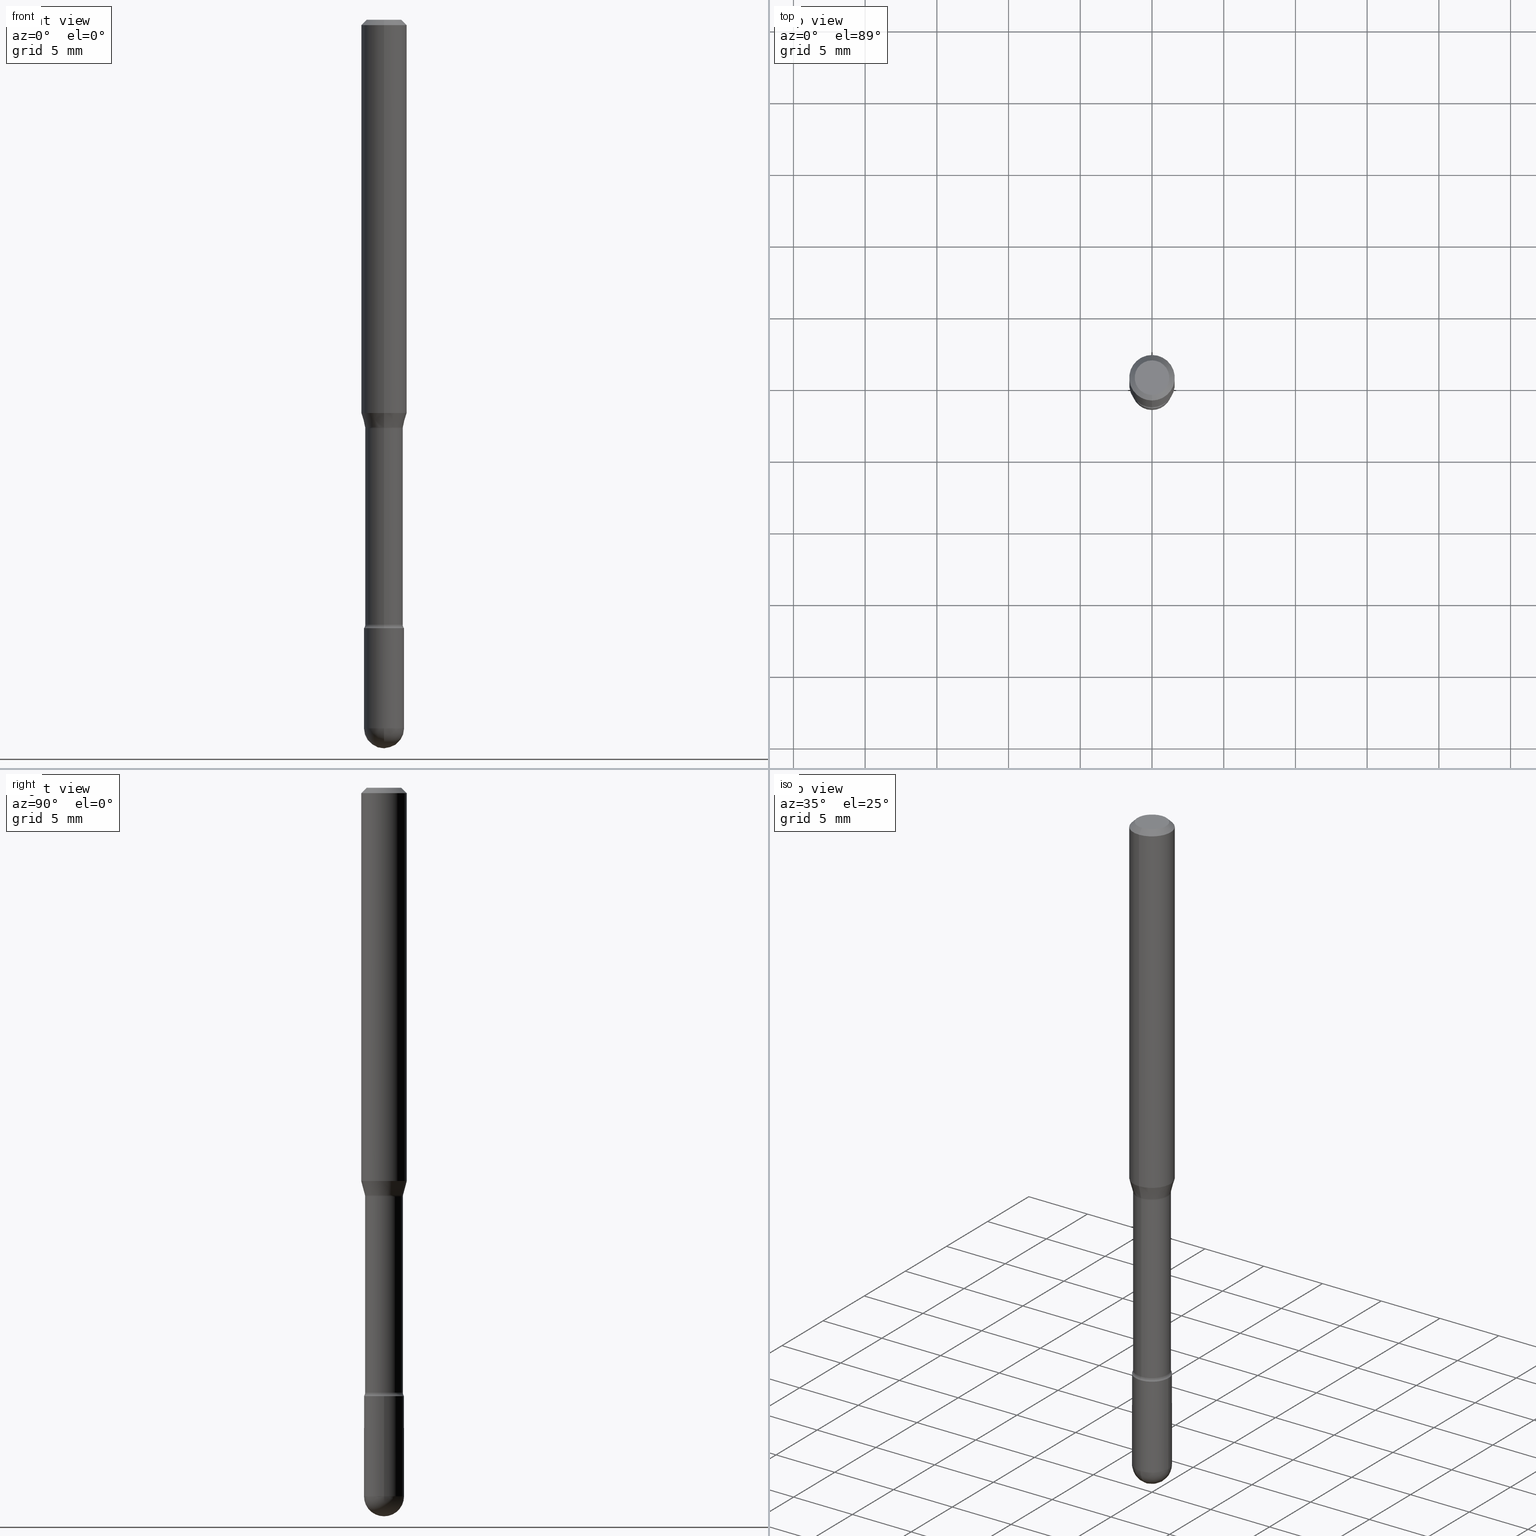
[diagram: canonical four-view strip — front | top / right | iso, engineering-drawing reading convention]
A machine part, canonical four-view strip (front | top / right | iso — engineering-drawing reading convention). The complete STEP part file that produces these views, byte-faithful:
ISO-10303-21;
HEADER;
FILE_DESCRIPTION (( 'STEP AP203' ),
    '1' );
FILE_NAME ('03721.STEP',
    '2024-04-09T20:15:29',
    ( '' ),
    ( '' ),
    'SwSTEP 2.0',
    'SolidWorks 2023',
    '' );
FILE_SCHEMA (( 'CONFIG_CONTROL_DESIGN' ));
ENDSEC;

DATA;
#1 = DIRECTION ( 'NONE',  ( 6.982962677686265922E-15, 1.000000000000000000, -3.483106191921935554E-15 ) ) ;
#2 = ADVANCED_BREP_SHAPE_REPRESENTATION ( '03721', ( #278, #285, #124 ), #52 ) ;
#3 = DIRECTION ( 'NONE',  ( 1.000000000000000000, -6.982962677686262766E-15, 0.000000000000000000 ) ) ;
#4 = DIRECTION ( 'NONE',  ( 2.445413130264774558E-29, -3.491561069929980790E-15, -1.000000000000000000 ) ) ;
#5 = DIRECTION ( 'NONE',  ( -2.445468806185136597E-29, 3.491481338843145583E-15, 1.000000000000000000 ) ) ;
#6 = CARTESIAN_POINT ( 'NONE',  ( -3.773273898774340269E-16, -0.04749999999999999362, 8.310590597675336717E-17 ) ) ;
#7 = EDGE_CURVE ( 'NONE', #247, #385, #474, .T. ) ;
#8 = DIRECTION ( 'NONE',  ( 1.000000000000000000, -6.982962677686266711E-15, 4.876176775795935793E-29 ) ) ;
#9 = DIRECTION ( 'NONE',  ( -6.982962677686263555E-15, -1.000000000000000000, 0.000000000000000000 ) ) ;
#10 = AXIS2_PLACEMENT_3D ( 'NONE', #177, #353, #524 ) ;
#11 = CIRCLE ( 'NONE', #461, 0.05221111260566397433 ) ;
#12 = EDGE_LOOP ( 'NONE', ( #70, #519, #503, #316 ) ) ;
#13 = EDGE_LOOP ( 'NONE', ( #161, #471, #542, #168 ) ) ;
#14 = EDGE_CURVE ( 'NONE', #341, #46, #295, .T. ) ;
#15 = DIRECTION ( 'NONE',  ( -6.982962677686265922E-15, -1.000000000000000000, 4.370956789862821150E-15 ) ) ;
#16 = CIRCLE ( 'NONE', #94, 0.05169999999999999596 ) ;
#17 = DIRECTION ( 'NONE',  ( 4.937700262164548042E-15, 0.7071067811865451302, -0.7071067811865499042 ) ) ;
#18 = CARTESIAN_POINT ( 'NONE',  ( 2.743754344068947711E-29, -3.917354033082399546E-15, -1.121974787463810630 ) ) ;
#19 = CARTESIAN_POINT ( 'NONE',  ( 4.440892098500888458E-16, 0.06249999999999621830, -1.079693851278256123 ) ) ;
#20 = ORIENTED_EDGE ( 'NONE', *, *, #14, .T. ) ;
#21 = VECTOR ( 'NONE', #528, 39.37007874015748143 ) ;
#22 = VECTOR ( 'NONE', #317, 39.37007874015748143 ) ;
#23 = LINE ( 'NONE', #548, #484 ) ;
#24 = ORIENTED_EDGE ( 'NONE', *, *, #401, .T. ) ;
#25 = ORIENTED_EDGE ( 'NONE', *, *, #64, .F. ) ;
#26 = EDGE_CURVE ( 'NONE', #393, #239, #455, .T. ) ;
#27 = ORIENTED_EDGE ( 'NONE', *, *, #500, .T. ) ;
#28 = CARTESIAN_POINT ( 'NONE',  ( 4.060885585943542654E-29, -5.798132775947381421E-15, -1.660613307291702645 ) ) ;
#29 = AXIS2_PLACEMENT_3D ( 'NONE', #28, #558, #527 ) ;
#30 = VERTEX_POINT ( 'NONE', #6 ) ;
#31 = AXIS2_PLACEMENT_3D ( 'NONE', #51, #54, #362 ) ;
#32 = APPROVAL_DATE_TIME ( #508, #35 ) ;
#33 = CARTESIAN_POINT ( 'NONE',  ( -4.364351673553912750E-16, -0.06250000000000005551, -0.01499999999999986587 ) ) ;
#34 = VERTEX_POINT ( 'NONE', #182 ) ;
#35 = APPROVAL ( #75, 'UNSPECIFIED' ) ;
#36 = CYLINDRICAL_SURFACE ( 'NONE', #10, 0.05170000000000000984 ) ;
#37 = EDGE_CURVE ( 'NONE', #272, #46, #357, .T. ) ;
#38 = EDGE_LOOP ( 'NONE', ( #327, #277, #369, #250, #169 ) ) ;
#39 = DIRECTION ( 'NONE',  ( -6.982962677686264344E-15, -1.000000000000000000, 3.491561069929980001E-15 ) ) ;
#40 = CYLINDRICAL_SURFACE ( 'NONE', #220, 0.06250000000000000000 ) ;
#41 = ORIENTED_EDGE ( 'NONE', *, *, #384, .F. ) ;
#42 = CARTESIAN_POINT ( 'NONE',  ( -3.610191704363393772E-16, -0.05170000000000580381, -1.660613307291702423 ) ) ;
#43 = VECTOR ( 'NONE', #352, 39.37007874015748143 ) ;
#44 = EDGE_CURVE ( 'NONE', #203, #90, #546, .T. ) ;
#45 = LINE ( 'NONE', #89, #22 ) ;
#46 = VERTEX_POINT ( 'NONE', #33 ) ;
#47 = CARTESIAN_POINT ( 'NONE',  ( 4.893289319665516092E-29, -6.979594898988634750E-15, -2.000000000000000000 ) ) ;
#48 = CARTESIAN_POINT ( 'NONE',  ( 0.000000000000000000, 0.000000000000000000, 0.000000000000000000 ) ) ;
#49 = FACE_OUTER_BOUND ( 'NONE', #12, .T. ) ;
#50 = CIRCLE ( 'NONE', #492, 0.05500000000000004191 ) ;
#51 = CARTESIAN_POINT ( 'NONE',  ( 4.756436828030090255E-29, -6.790931204049917095E-15, -1.944999999999999840 ) ) ;
#52 =( GEOMETRIC_REPRESENTATION_CONTEXT ( 3 ) GLOBAL_UNCERTAINTY_ASSIGNED_CONTEXT ( ( #427 ) ) GLOBAL_UNIT_ASSIGNED_CONTEXT ( ( #149, #496, #97 ) ) REPRESENTATION_CONTEXT ( 'NONE', 'WORKASPACE' ) );
#53 = PRODUCT_RELATED_PRODUCT_CATEGORY ( 'detail', '', ( #102 ) ) ;
#54 = DIRECTION ( 'NONE',  ( -1.000000000000000000, 7.105427357601001070E-15, -4.926315508542082329E-29 ) ) ;
#55 = CALENDAR_DATE ( 2024, 9, 4 ) ;
#56 = DIRECTION ( 'NONE',  ( -2.445413130264774558E-29, 3.491561069929980790E-15, 1.000000000000000000 ) ) ;
#57 = AXIS2_PLACEMENT_3D ( 'NONE', #389, #260, #476 ) ;
#58 = TOROIDAL_SURFACE ( 'NONE', #456, 0.06669999999999999540, 0.01499999999999998904 ) ;
#59 = CARTESIAN_POINT ( 'NONE',  ( 4.756436828030090255E-29, -6.790931204049917095E-15, -1.944999999999999840 ) ) ;
#60 = ADVANCED_FACE ( 'NONE', ( #211 ), #382, .T. ) ;
#61 = APPLICATION_PROTOCOL_DEFINITION ( 'international standard', 'config_control_design', 1994, #420 ) ;
#62 = COORDINATED_UNIVERSAL_TIME_OFFSET ( 5, 0, .BEHIND. ) ;
#63 = EDGE_LOOP ( 'NONE', ( #246, #212, #374, #25 ) ) ;
#64 = EDGE_CURVE ( 'NONE', #509, #247, #230, .T. ) ;
#65 = AXIS2_PLACEMENT_3D ( 'NONE', #226, #398, #526 ) ;
#66 = DIRECTION ( 'NONE',  ( 7.105427357601001859E-15, 1.000000000000000000, 0.000000000000000000 ) ) ;
#67 = ORIENTED_EDGE ( 'NONE', *, *, #130, .T. ) ;
#68 = PERSON_AND_ORGANIZATION_ROLE ( 'creator' ) ;
#69 = ORIENTED_EDGE ( 'NONE', *, *, #163, .F. ) ;
#70 = ORIENTED_EDGE ( 'NONE', *, *, #520, .F. ) ;
#71 = DIRECTION ( 'NONE',  ( 2.445413130264774558E-29, -3.491561069929980790E-15, -1.000000000000000000 ) ) ;
#72 = CARTESIAN_POINT ( 'NONE',  ( 2.743691877090031832E-29, -3.917443489351605416E-15, -1.121974787463810630 ) ) ;
#73 = EDGE_LOOP ( 'NONE', ( #185, #534, #195, #417 ) ) ;
#74 = ORIENTED_EDGE ( 'NONE', *, *, #494, .F. ) ;
#75 = APPROVAL_STATUS ( 'not_yet_approved' ) ;
#76 = ORIENTED_EDGE ( 'NONE', *, *, #545, .T. ) ;
#77 = CARTESIAN_POINT ( 'NONE',  ( 3.668119695397181911E-31, -5.237341604894999979E-17, -0.01500000000000008271 ) ) ;
#78 = CARTESIAN_POINT ( 'NONE',  ( 3.673505943880124923E-16, 0.05169999999999608242, -1.121974787463810630 ) ) ;
#79 = CARTESIAN_POINT ( 'NONE',  ( 0.05500000000000000028, -3.840629472727446888E-16, 2.681897226687764826E-30 ) ) ;
#80 = APPROVAL_PERSON_ORGANIZATION ( #340, #35, #423 ) ;
#81 = CC_DESIGN_DATE_AND_TIME_ASSIGNMENT ( #190, #540, ( #281 ) ) ;
#82 = DIRECTION ( 'NONE',  ( -2.445413130264774558E-29, 3.491561069929980790E-15, 1.000000000000000000 ) ) ;
#83 = DIRECTION ( 'NONE',  ( 1.000000000000000000, -6.982962677686262766E-15, 0.000000000000000000 ) ) ;
#84 = FACE_OUTER_BOUND ( 'NONE', #513, .T. ) ;
#85 = LINE ( 'NONE', #265, #229 ) ;
#86 = ORIENTED_EDGE ( 'NONE', *, *, #171, .F. ) ;
#87 = CARTESIAN_POINT ( 'NONE',  ( 4.060885585943542654E-29, -5.798132775947381421E-15, -1.660613307291702645 ) ) ;
#88 = AXIS2_PLACEMENT_3D ( 'NONE', #486, #274, #83 ) ;
#89 = CARTESIAN_POINT ( 'NONE',  ( -3.645882506857991305E-16, -0.05221111260566788093, -1.118092501787272708 ) ) ;
#90 = VERTEX_POINT ( 'NONE', #127 ) ;
#91 = CC_DESIGN_PERSON_AND_ORGANIZATION_ASSIGNMENT ( #338, #68, ( #523 ) ) ;
#92 = APPLICATION_PROTOCOL_DEFINITION ( 'international standard', 'config_control_design', 1994, #107 ) ;
#93 = ADVANCED_FACE ( 'NONE', ( #176 ), #40, .T. ) ;
#94 = AXIS2_PLACEMENT_3D ( 'NONE', #72, #151, #331 ) ;
#95 = CARTESIAN_POINT ( 'NONE',  ( 0.05500000000000000028, -6.694915467231730455E-15, -1.944999999999999840 ) ) ;
#96 = DIRECTION ( 'NONE',  ( 1.000000000000000000, -6.982962677686265922E-15, 4.883557194083112340E-29 ) ) ;
#97 =( NAMED_UNIT ( * ) SI_UNIT ( $, .STERADIAN. ) SOLID_ANGLE_UNIT ( ) );
#98 = SPHERICAL_SURFACE ( 'NONE', #428, 0.05500000000000004191 ) ;
#99 = EDGE_CURVE ( 'NONE', #200, #341, #219, .T. ) ;
#100 = CARTESIAN_POINT ( 'NONE',  ( 2.640297520581989546E-29, -3.769817018565928118E-15, -1.079693851278255678 ) ) ;
#101 = VECTOR ( 'NONE', #258, 39.37007874015748143 ) ;
#102 = PRODUCT ( '03721', '03721', '', ( #187 ) ) ;
#103 = ORIENTED_EDGE ( 'NONE', *, *, #7, .F. ) ;
#104 = CARTESIAN_POINT ( 'NONE',  ( 4.756436828030090255E-29, -6.790931204049917095E-15, -1.944999999999999840 ) ) ;
#105 = PERSON_AND_ORGANIZATION_ROLE ( 'classification_officer' ) ;
#106 = EDGE_CURVE ( 'NONE', #393, #90, #85, .T. ) ;
#107 = APPLICATION_CONTEXT ( 'configuration controlled 3d designs of mechanical parts and assemblies' ) ;
#108 = SECURITY_CLASSIFICATION_LEVEL ( 'unclassified' ) ;
#109 = ORIENTED_EDGE ( 'NONE', *, *, #14, .F. ) ;
#110 = VERTEX_POINT ( 'NONE', #392 ) ;
#111 = EDGE_CURVE ( 'NONE', #214, #34, #449, .T. ) ;
#112 = DIRECTION ( 'NONE',  ( -2.445413130264774278E-29, 3.491561069929980396E-15, 1.000000000000000000 ) ) ;
#113 = CLOSED_SHELL ( 'NONE', ( #360, #489, #60, #154, #440 ) ) ;
#114 = CC_DESIGN_APPROVAL ( #305, ( #281 ) ) ;
#115 = PERSON_AND_ORGANIZATION ( #162, #522 ) ;
#116 = VERTEX_POINT ( 'NONE', #47 ) ;
#117 = DATE_AND_TIME ( #368, #438 ) ;
#118 = EDGE_LOOP ( 'NONE', ( #563, #475, #103, #323 ) ) ;
#119 = CC_DESIGN_PERSON_AND_ORGANIZATION_ASSIGNMENT ( #491, #280, ( #281 ) ) ;
#120 = CYLINDRICAL_SURFACE ( 'NONE', #166, 0.05170000000000000984 ) ;
#121 = ORIENTED_EDGE ( 'NONE', *, *, #26, .T. ) ;
#122 = DIRECTION ( 'NONE',  ( -2.445413130264774839E-29, 3.491561069929980396E-15, 1.000000000000000000 ) ) ;
#123 = AXIS2_PLACEMENT_3D ( 'NONE', #172, #473, #346 ) ;
#124 = AXIS2_PLACEMENT_3D ( 'NONE', #237, #410, #325 ) ;
#125 = CARTESIAN_POINT ( 'NONE',  ( 4.739320047520142042E-16, 0.06669999999999608187, -1.121974787463811074 ) ) ;
#126 = FACE_OUTER_BOUND ( 'NONE', #205, .T. ) ;
#127 = CARTESIAN_POINT ( 'NONE',  ( -0.05500000000000000028, -5.920054015290930021E-15, -1.669999999999999929 ) ) ;
#128 = ORIENTED_EDGE ( 'NONE', *, *, #216, .F. ) ;
#129 = DIRECTION ( 'NONE',  ( -6.982962677686266711E-15, -1.000000000000000000, 2.642019336232363246E-15 ) ) ;
#130 = EDGE_CURVE ( 'NONE', #254, #301, #544, .T. ) ;
#131 = DIRECTION ( 'NONE',  ( -2.445413130264774558E-29, 3.491561069929980790E-15, 1.000000000000000000 ) ) ;
#132 = ORIENTED_EDGE ( 'NONE', *, *, #37, .T. ) ;
#133 = CYLINDRICAL_SURFACE ( 'NONE', #191, 0.05500000000000000028 ) ;
#134 = FACE_OUTER_BOUND ( 'NONE', #426, .T. ) ;
#135 = DIRECTION ( 'NONE',  ( -6.982962677686265922E-15, -1.000000000000000000, 3.483106191921935554E-15 ) ) ;
#136 = DIRECTION ( 'NONE',  ( 6.982962677686266711E-15, 1.000000000000000000, -4.966996352116838343E-15 ) ) ;
#137 = CARTESIAN_POINT ( 'NONE',  ( 4.756436828030090255E-29, -6.790931204049917095E-15, -1.944999999999999840 ) ) ;
#138 = DIRECTION ( 'NONE',  ( 6.982962677686267499E-15, 1.000000000000000000, 0.000000000000000000 ) ) ;
#139 = ORIENTED_EDGE ( 'NONE', *, *, #535, .T. ) ;
#140 = CIRCLE ( 'NONE', #554, 0.04749999999999999362 ) ;
#141 = DIRECTION ( 'NONE',  ( 1.000000000000000000, -6.982962677686262766E-15, 0.000000000000000000 ) ) ;
#142 = CC_DESIGN_APPROVAL ( #35, ( #523 ) ) ;
#143 = DIRECTION ( 'NONE',  ( 6.982962677686265922E-15, 1.000000000000000000, -3.491561069929980396E-15 ) ) ;
#144 = LINE ( 'NONE', #536, #359 ) ;
#145 = ADVANCED_FACE ( 'NONE', ( #134 ), #267, .T. ) ;
#146 = COORDINATED_UNIVERSAL_TIME_OFFSET ( 5, 0, .BEHIND. ) ;
#147 = DIRECTION ( 'NONE',  ( 1.000000000000000000, -6.982962677686262766E-15, 0.000000000000000000 ) ) ;
#148 = DIMENSIONAL_EXPONENTS ( 1.000000000000000000, 0.000000000000000000, 0.000000000000000000, 0.000000000000000000, 0.000000000000000000, 0.000000000000000000, 0.000000000000000000 ) ;
#149 =( CONVERSION_BASED_UNIT ( 'INCH', #288 ) LENGTH_UNIT ( ) NAMED_UNIT ( #148 ) );
#150 = CIRCLE ( 'NONE', #279, 0.06250000000000000000 ) ;
#151 = DIRECTION ( 'NONE',  ( -2.445413130264774558E-29, 3.491561069929980790E-15, 1.000000000000000000 ) ) ;
#152 = DIRECTION ( 'NONE',  ( -2.445413130264774558E-29, 3.491561069929980790E-15, 1.000000000000000000 ) ) ;
#153 = CARTESIAN_POINT ( 'NONE',  ( 2.023148002079983329E-45, -2.889412098118902391E-31, -8.274324484492070360E-17 ) ) ;
#154 = ADVANCED_FACE ( 'NONE', ( #485 ), #324, .T. ) ;
#155 = FACE_OUTER_BOUND ( 'NONE', #383, .T. ) ;
#156 = DIRECTION ( 'NONE',  ( -6.982962677686266711E-15, -1.000000000000000000, 3.491561069929980790E-15 ) ) ;
#157 = APPROVAL_ROLE ( '' ) ;
#158 = AXIS2_PLACEMENT_3D ( 'NONE', #343, #299, #419 ) ;
#159 = APPROVAL ( #160, 'UNSPECIFIED' ) ;
#160 = APPROVAL_STATUS ( 'not_yet_approved' ) ;
#161 = ORIENTED_EDGE ( 'NONE', *, *, #545, .F. ) ;
#162 = PERSON ( 'UNSPECIFIED', 'UNSPECIFIED', 'UNSPECIFIED', ('UNSPECIFIED'), ('UNSPECIFIED'), ('UNSPECIFIED') ) ;
#163 = EDGE_CURVE ( 'NONE', #214, #254, #413, .T. ) ;
#164 = ORIENTED_EDGE ( 'NONE', *, *, #273, .T. ) ;
#165 = ORIENTED_EDGE ( 'NONE', *, *, #37, .F. ) ;
#166 = AXIS2_PLACEMENT_3D ( 'NONE', #306, #564, #39 ) ;
#167 = CARTESIAN_POINT ( 'NONE',  ( 3.907985046680961743E-16, 0.05499999999999421324, -1.670000000000000151 ) ) ;
#168 = ORIENTED_EDGE ( 'NONE', *, *, #367, .F. ) ;
#169 = ORIENTED_EDGE ( 'NONE', *, *, #415, .T. ) ;
#170 = CARTESIAN_POINT ( 'NONE',  ( -3.610191704363799542E-16, -0.05170000000000000984, 6.585871062066260087E-16 ) ) ;
#171 = EDGE_CURVE ( 'NONE', #116, #502, #50, .T. ) ;
#172 = CARTESIAN_POINT ( 'NONE',  ( 4.083932906329177803E-29, -5.830773835868053056E-15, -1.669999999999999929 ) ) ;
#173 = ORIENTED_EDGE ( 'NONE', *, *, #111, .F. ) ;
#174 = CARTESIAN_POINT ( 'NONE',  ( 4.083839927542173003E-29, -5.830906986783067502E-15, -1.669999999999999929 ) ) ;
#175 = AXIS2_PLACEMENT_3D ( 'NONE', #100, #234, #15 ) ;
#176 = FACE_OUTER_BOUND ( 'NONE', #344, .T. ) ;
#177 = CARTESIAN_POINT ( 'NONE',  ( -1.169113584055446105E-44, 1.669184350826100908E-30, 4.780733988912460139E-16 ) ) ;
#178 = DIRECTION ( 'NONE',  ( -2.445468806185136597E-29, 3.491481338843145583E-15, 1.000000000000000000 ) ) ;
#179 = EDGE_LOOP ( 'NONE', ( #552, #69, #198, #204 ) ) ;
#180 = ORIENTED_EDGE ( 'NONE', *, *, #472, .F. ) ;
#181 = DIRECTION ( 'NONE',  ( -2.445413130264774558E-29, 3.491561069929980790E-15, 1.000000000000000000 ) ) ;
#182 = CARTESIAN_POINT ( 'NONE',  ( -3.840629472727041611E-16, -0.05500000000000587752, -1.669999999999999707 ) ) ;
#183 = CARTESIAN_POINT ( 'NONE',  ( 2.734198084721188146E-29, -3.903888251821059305E-15, -1.118092501787272930 ) ) ;
#184 = CARTESIAN_POINT ( 'NONE',  ( -4.657636106016338808E-16, -0.06670000000000586571, -1.660613307291702423 ) ) ;
#185 = ORIENTED_EDGE ( 'NONE', *, *, #330, .F. ) ;
#186 = ADVANCED_FACE ( 'NONE', ( #155 ), #332, .T. ) ;
#187 = MECHANICAL_CONTEXT ( 'NONE', #107, 'mechanical' ) ;
#188 = FACE_OUTER_BOUND ( 'NONE', #63, .T. ) ;
#189 = CIRCLE ( 'NONE', #57, 0.06250000000000000000 ) ;
#190 = DATE_AND_TIME ( #404, #269 ) ;
#191 = AXIS2_PLACEMENT_3D ( 'NONE', #394, #5, #8 ) ;
#192 = DIRECTION ( 'NONE',  ( -6.982962677686266711E-15, -1.000000000000000000, 2.616155696869698836E-15 ) ) ;
#193 = PERSON_AND_ORGANIZATION_ROLE ( 'design_owner' ) ;
#194 = DIRECTION ( 'NONE',  ( -6.982962677686265133E-15, -1.000000000000000000, 3.491561069929980396E-15 ) ) ;
#195 = ORIENTED_EDGE ( 'NONE', *, *, #64, .T. ) ;
#196 = EDGE_CURVE ( 'NONE', #509, #110, #328, .T. ) ;
#197 = FACE_OUTER_BOUND ( 'NONE', #73, .T. ) ;
#198 = ORIENTED_EDGE ( 'NONE', *, *, #111, .T. ) ;
#199 = AXIS2_PLACEMENT_3D ( 'NONE', #396, #434, #557 ) ;
#200 = VERTEX_POINT ( 'NONE', #19 ) ;
#201 = ADVANCED_FACE ( 'NONE', ( #197 ), #537, .F. ) ;
#202 = ORIENTED_EDGE ( 'NONE', *, *, #510, .F. ) ;
#203 = VERTEX_POINT ( 'NONE', #556 ) ;
#204 = ORIENTED_EDGE ( 'NONE', *, *, #264, .T. ) ;
#205 = EDGE_LOOP ( 'NONE', ( #210, #464, #561, #180 ) ) ;
#206 = ADVANCED_FACE ( 'NONE', ( #84 ), #506, .T. ) ;
#207 = CARTESIAN_POINT ( 'NONE',  ( 3.790745495280543333E-16, 0.05169999999999420892, -1.660613307291702867 ) ) ;
#208 = CIRCLE ( 'NONE', #29, 0.05170000000000000984 ) ;
#209 = CIRCLE ( 'NONE', #175, 0.06250000000000000000 ) ;
#210 = ORIENTED_EDGE ( 'NONE', *, *, #408, .F. ) ;
#211 = FACE_OUTER_BOUND ( 'NONE', #549, .T. ) ;
#212 = ORIENTED_EDGE ( 'NONE', *, *, #330, .T. ) ;
#213 = DIRECTION ( 'NONE',  ( -6.982962677686265133E-15, -1.000000000000000000, 3.491561069929980396E-15 ) ) ;
#214 = VERTEX_POINT ( 'NONE', #42 ) ;
#215 = CARTESIAN_POINT ( 'NONE',  ( 4.060978042117791300E-29, -5.798000373443578100E-15, -1.660613307291702645 ) ) ;
#216 = EDGE_CURVE ( 'NONE', #46, #341, #189, .T. ) ;
#217 = DIRECTION ( 'NONE',  ( -2.445413130264774558E-29, 3.491561069929980790E-15, 1.000000000000000000 ) ) ;
#218 = FACE_OUTER_BOUND ( 'NONE', #550, .T. ) ;
#219 = LINE ( 'NONE', #565, #43 ) ;
#220 = AXIS2_PLACEMENT_3D ( 'NONE', #312, #263, #432 ) ;
#221 = DIRECTION ( 'NONE',  ( -2.445468806185136877E-29, 3.491481338843145188E-15, 1.000000000000000000 ) ) ;
#222 = DIRECTION ( 'NONE',  ( -6.982962677686266711E-15, -1.000000000000000000, 4.966996352116842287E-15 ) ) ;
#223 = DIRECTION ( 'NONE',  ( -2.445413130264774558E-29, 3.491561069929980790E-15, 1.000000000000000000 ) ) ;
#224 = DIRECTION ( 'NONE',  ( -2.445413130264774558E-29, 3.491561069929980790E-15, 1.000000000000000000 ) ) ;
#225 = PLANE ( 'NONE',  #268 ) ;
#226 = CARTESIAN_POINT ( 'NONE',  ( 4.739320047520278121E-16, 0.06669999999999427776, -1.660613307291702867 ) ) ;
#227 = FACE_OUTER_BOUND ( 'NONE', #337, .T. ) ;
#228 = EDGE_CURVE ( 'NONE', #254, #214, #208, .T. ) ;
#229 = VECTOR ( 'NONE', #221, 39.37007874015748143 ) ;
#230 = CIRCLE ( 'NONE', #376, 0.01499999999999998557 ) ;
#231 = CIRCLE ( 'NONE', #414, 0.05500000000000000028 ) ;
#232 = COORDINATED_UNIVERSAL_TIME_OFFSET ( 5, 0, .BEHIND. ) ;
#233 = EDGE_CURVE ( 'NONE', #214, #247, #517, .T. ) ;
#234 = DIRECTION ( 'NONE',  ( -2.445413130264774558E-29, 3.491561069929980790E-15, 1.000000000000000000 ) ) ;
#235 = AXIS2_PLACEMENT_3D ( 'NONE', #77, #4, #1 ) ;
#236 = AXIS2_PLACEMENT_3D ( 'NONE', #153, #365, #156 ) ;
#237 = CARTESIAN_POINT ( 'NONE',  ( 0.000000000000000000, 0.000000000000000000, 0.000000000000000000 ) ) ;
#238 = EDGE_LOOP ( 'NONE', ( #468, #27, #504, #372 ) ) ;
#239 = VERTEX_POINT ( 'NONE', #422 ) ;
#240 = AXIS2_PLACEMENT_3D ( 'NONE', #497, #409, #286 ) ;
#241 = LOCAL_TIME ( 16, 15, 29.00000000000000000, #146 ) ;
#242 = SECURITY_CLASSIFICATION ( '', '', #108 ) ;
#243 = ORIENTED_EDGE ( 'NONE', *, *, #510, .T. ) ;
#244 = APPROVAL_DATE_TIME ( #551, #159 ) ;
#245 = ORIENTED_EDGE ( 'NONE', *, *, #106, .F. ) ;
#246 = ORIENTED_EDGE ( 'NONE', *, *, #318, .F. ) ;
#247 = VERTEX_POINT ( 'NONE', #431 ) ;
#248 = ADVANCED_FACE ( 'NONE', ( #308 ), #36, .T. ) ;
#249 = PERSON_AND_ORGANIZATION ( #162, #522 ) ;
#250 = ORIENTED_EDGE ( 'NONE', *, *, #298, .F. ) ;
#251 = EDGE_LOOP ( 'NONE', ( #245, #121, #400, #516, #418 ) ) ;
#252 = DIRECTION ( 'NONE',  ( -6.982962677686265133E-15, -1.000000000000000000, 3.491561069929980790E-15 ) ) ;
#253 = COORDINATED_UNIVERSAL_TIME_OFFSET ( 5, 0, .BEHIND. ) ;
#254 = VERTEX_POINT ( 'NONE', #207 ) ;
#255 = CARTESIAN_POINT ( 'NONE',  ( -0.05500000000000000028, -5.920054015290930810E-15, -1.944999999999999840 ) ) ;
#256 = CIRCLE ( 'NONE', #364, 0.05500000000000000028 ) ;
#257 = AXIS2_PLACEMENT_3D ( 'NONE', #48, #531, #445 ) ;
#258 = DIRECTION ( 'NONE',  ( -2.445468806185136877E-29, 3.491481338843145188E-15, 1.000000000000000000 ) ) ;
#259 = DIRECTION ( 'NONE',  ( -2.445413130264774558E-29, 3.491561069929980790E-15, 1.000000000000000000 ) ) ;
#260 = DIRECTION ( 'NONE',  ( -2.445413130264774558E-29, 3.491561069929980790E-15, 1.000000000000000000 ) ) ;
#261 = CARTESIAN_POINT ( 'NONE',  ( 3.668119695397181911E-31, -5.237341604894999979E-17, -0.01500000000000008271 ) ) ;
#262 = CC_DESIGN_DATE_AND_TIME_ASSIGNMENT ( #117, #541, ( #242 ) ) ;
#263 = DIRECTION ( 'NONE',  ( -2.445413130264774558E-29, 3.491561069929980790E-15, 1.000000000000000000 ) ) ;
#264 = EDGE_CURVE ( 'NONE', #34, #301, #256, .T. ) ;
#265 = CARTESIAN_POINT ( 'NONE',  ( -0.05500000000000000028, 3.907985046680551042E-16, -2.705414299640198362E-30 ) ) ;
#266 = DIRECTION ( 'NONE',  ( -2.445413130264774558E-29, 3.491561069929980790E-15, 1.000000000000000000 ) ) ;
#267 = CONICAL_SURFACE ( 'NONE', #425, 0.05221111260566397433, 0.2617993877991485197 ) ;
#268 = AXIS2_PLACEMENT_3D ( 'NONE', #487, #399, #143 ) ;
#269 = LOCAL_TIME ( 16, 15, 29.00000000000000000, #232 ) ;
#270 = ORIENTED_EDGE ( 'NONE', *, *, #99, .T. ) ;
#271 = CARTESIAN_POINT ( 'NONE',  ( 2.640297520581989546E-29, -3.769817018565928118E-15, -1.079693851278255678 ) ) ;
#272 = VERTEX_POINT ( 'NONE', #375 ) ;
#273 = EDGE_CURVE ( 'NONE', #509, #272, #45, .T. ) ;
#274 = DIRECTION ( 'NONE',  ( -2.445468806185136597E-29, 3.491481338843145583E-15, 1.000000000000000000 ) ) ;
#275 = CARTESIAN_POINT ( 'NONE',  ( 4.756436828030090255E-29, -6.790931204049917095E-15, -1.944999999999999840 ) ) ;
#276 = DIRECTION ( 'NONE',  ( 1.000000000000000000, -6.982962677686262766E-15, 0.000000000000000000 ) ) ;
#277 = ORIENTED_EDGE ( 'NONE', *, *, #106, .T. ) ;
#278 = MANIFOLD_SOLID_BREP ( 'Body-Move/Copy2[1]', #113 ) ;
#279 = AXIS2_PLACEMENT_3D ( 'NONE', #271, #441, #483 ) ;
#280 = PERSON_AND_ORGANIZATION_ROLE ( 'creator' ) ;
#281 = PRODUCT_DEFINITION ( 'UNKNOWN', '', #523, #313 ) ;
#282 =( LENGTH_UNIT ( ) NAMED_UNIT ( * ) SI_UNIT ( $, .METRE. ) );
#283 = FACE_OUTER_BOUND ( 'NONE', #292, .T. ) ;
#284 = PRODUCT_DEFINITION_SHAPE ( 'NONE', 'NONE',  #281 ) ;
#285 = MANIFOLD_SOLID_BREP ( 'Body-Move/Copy2[2]', #498 ) ;
#286 = DIRECTION ( 'NONE',  ( -6.982962677686265922E-15, -1.000000000000000000, 3.491561069929980396E-15 ) ) ;
#287 = AXIS2_PLACEMENT_3D ( 'NONE', #388, #224, #135 ) ;
#288 = LENGTH_MEASURE_WITH_UNIT ( LENGTH_MEASURE( 0.02539999999999999897 ), #282 );
#289 = TOROIDAL_SURFACE ( 'NONE', #329, 0.06670000000000006479, 0.01500000000000006710 ) ;
#290 = CC_DESIGN_SECURITY_CLASSIFICATION ( #242, ( #523 ) ) ;
#291 = EDGE_CURVE ( 'NONE', #272, #200, #150, .T. ) ;
#292 = EDGE_LOOP ( 'NONE', ( #86, #76, #470, #74 ) ) ;
#293 = COORDINATED_UNIVERSAL_TIME_OFFSET ( 5, 0, .BEHIND. ) ;
#294 = ORIENTED_EDGE ( 'NONE', *, *, #318, .T. ) ;
#295 = CIRCLE ( 'NONE', #287, 0.06250000000000000000 ) ;
#296 = AXIS2_PLACEMENT_3D ( 'NONE', #488, #178, #276 ) ;
#297 = LOCAL_TIME ( 16, 15, 29.00000000000000000, #293 ) ;
#298 = EDGE_CURVE ( 'NONE', #515, #203, #304, .T. ) ;
#299 = DIRECTION ( 'NONE',  ( -2.445413130264774558E-29, 3.491561069929980790E-15, 1.000000000000000000 ) ) ;
#300 = PERSON_AND_ORGANIZATION ( #162, #522 ) ;
#301 = VERTEX_POINT ( 'NONE', #167 ) ;
#302 = ORIENTED_EDGE ( 'NONE', *, *, #291, .T. ) ;
#303 = DIRECTION ( 'NONE',  ( 6.982962677686265922E-15, 1.000000000000000000, -3.483106191921935554E-15 ) ) ;
#304 = LINE ( 'NONE', #79, #101 ) ;
#305 = APPROVAL ( #452, 'UNSPECIFIED' ) ;
#306 = CARTESIAN_POINT ( 'NONE',  ( -1.169113584055446105E-44, 1.669184350826100908E-30, 4.780733988912460139E-16 ) ) ;
#307 = CARTESIAN_POINT ( 'NONE',  ( 2.743691877090031832E-29, -3.917443489351605416E-15, -1.121974787463810630 ) ) ;
#308 = FACE_OUTER_BOUND ( 'NONE', #118, .T. ) ;
#309 = AXIS2_PLACEMENT_3D ( 'NONE', #137, #319, #3 ) ;
#310 = VECTOR ( 'NONE', #397, 39.37007874015748143 ) ;
#311 = DIRECTION ( 'NONE',  ( 1.000000000000000000, -7.105427357601001070E-15, 4.926316484966285586E-29 ) ) ;
#312 = CARTESIAN_POINT ( 'NONE',  ( -1.169113584055446105E-44, 1.669184350826100908E-30, 4.780733988912460139E-16 ) ) ;
#313 = DESIGN_CONTEXT ( 'detailed design', #420, 'design' ) ;
#314 = DIRECTION ( 'NONE',  ( -6.982962677686266711E-15, -1.000000000000000000, 4.966996352116842287E-15 ) ) ;
#315 = CARTESIAN_POINT ( 'NONE',  ( 4.756436828030090255E-29, -6.790931204049917095E-15, -1.944999999999999840 ) ) ;
#316 = ORIENTED_EDGE ( 'NONE', *, *, #562, .F. ) ;
#317 = DIRECTION ( 'NONE',  ( -1.807323732225318306E-15, -0.2588190451025164651, 0.9659258262890694224 ) ) ;
#318 = EDGE_CURVE ( 'NONE', #110, #509, #11, .T. ) ;
#319 = DIRECTION ( 'NONE',  ( -2.445468806185136597E-29, 3.491481338843145583E-15, 1.000000000000000000 ) ) ;
#320 = CONICAL_SURFACE ( 'NONE', #437, 0.06250000000000000000, 0.7853981633974483900 ) ;
#321 = DIRECTION ( 'NONE',  ( 6.982962677686266711E-15, 1.000000000000000000, -4.966996352116838343E-15 ) ) ;
#322 = ORIENTED_EDGE ( 'NONE', *, *, #562, .T. ) ;
#323 = ORIENTED_EDGE ( 'NONE', *, *, #233, .F. ) ;
#324 = SPHERICAL_SURFACE ( 'NONE', #406, 0.05500000000000004191 ) ;
#325 = DIRECTION ( 'NONE',  ( 1.000000000000000000, 0.000000000000000000, 0.000000000000000000 ) ) ;
#326 = DATE_AND_TIME ( #55, #241 ) ;
#327 = ORIENTED_EDGE ( 'NONE', *, *, #494, .T. ) ;
#328 = CIRCLE ( 'NONE', #363, 0.05221111260566397433 ) ;
#329 = AXIS2_PLACEMENT_3D ( 'NONE', #351, #259, #252 ) ;
#330 = EDGE_CURVE ( 'NONE', #110, #385, #499, .T. ) ;
#331 = DIRECTION ( 'NONE',  ( -6.982962677686266711E-15, -1.000000000000000000, 2.642019336232363246E-15 ) ) ;
#332 = CYLINDRICAL_SURFACE ( 'NONE', #240, 0.06250000000000000000 ) ;
#333 = ADVANCED_FACE ( 'NONE', ( #416 ), #566, .T. ) ;
#334 = AXIS2_PLACEMENT_3D ( 'NONE', #307, #354, #129 ) ;
#335 = SHAPE_DEFINITION_REPRESENTATION ( #284, #2 ) ;
#336 = AXIS2_PLACEMENT_3D ( 'NONE', #429, #112, #478 ) ;
#337 = EDGE_LOOP ( 'NONE', ( #243, #412 ) ) ;
#338 = PERSON_AND_ORGANIZATION ( #162, #522 ) ;
#339 = EDGE_LOOP ( 'NONE', ( #421, #512 ) ) ;
#340 = PERSON_AND_ORGANIZATION ( #162, #522 ) ;
#341 = VERTEX_POINT ( 'NONE', #521 ) ;
#342 = ADVANCED_FACE ( 'NONE', ( #126 ), #120, .T. ) ;
#343 = CARTESIAN_POINT ( 'NONE',  ( 2.734198084721188146E-29, -3.903888251821059305E-15, -1.118092501787272930 ) ) ;
#344 = EDGE_LOOP ( 'NONE', ( #457, #139, #132, #109 ) ) ;
#345 = CIRCLE ( 'NONE', #296, 0.05500000000000000028 ) ;
#346 = DIRECTION ( 'NONE',  ( 1.000000000000000000, -6.982962677686265922E-15, 4.876176775795935793E-29 ) ) ;
#347 = ORIENTED_EDGE ( 'NONE', *, *, #447, .T. ) ;
#348 = CARTESIAN_POINT ( 'NONE',  ( -4.657636106016465025E-16, -0.06670000000000392282, -1.121974787463810408 ) ) ;
#349 = CIRCLE ( 'NONE', #391, 0.05500000000000000028 ) ;
#350 = ORIENTED_EDGE ( 'NONE', *, *, #44, .T. ) ;
#351 = CARTESIAN_POINT ( 'NONE',  ( 4.060978042117791300E-29, -5.798000373443578100E-15, -1.660613307291702645 ) ) ;
#352 = DIRECTION ( 'NONE',  ( -2.445413130264774839E-29, 3.491561069929980396E-15, 1.000000000000000000 ) ) ;
#353 = DIRECTION ( 'NONE',  ( -2.445413130264774558E-29, 3.491561069929980790E-15, 1.000000000000000000 ) ) ;
#354 = DIRECTION ( 'NONE',  ( -2.445413130264774558E-29, 3.491561069929980790E-15, 1.000000000000000000 ) ) ;
#355 = ADVANCED_FACE ( 'NONE', ( #218 ), #289, .F. ) ;
#356 = CARTESIAN_POINT ( 'NONE',  ( 4.756436828030090255E-29, -6.790931204049917095E-15, -1.944999999999999840 ) ) ;
#357 = LINE ( 'NONE', #480, #21 ) ;
#358 = VECTOR ( 'NONE', #122, 39.37007874015748143 ) ;
#359 = VECTOR ( 'NONE', #17, 39.37007874015748143 ) ;
#360 = ADVANCED_FACE ( 'NONE', ( #387 ), #381, .T. ) ;
#361 = PERSON_AND_ORGANIZATION ( #162, #522 ) ;
#362 = DIRECTION ( 'NONE',  ( -7.105427357601001070E-15, -1.000000000000000000, 0.000000000000000000 ) ) ;
#363 = AXIS2_PLACEMENT_3D ( 'NONE', #454, #543, #411 ) ;
#364 = AXIS2_PLACEMENT_3D ( 'NONE', #377, #266, #222 ) ;
#365 = DIRECTION ( 'NONE',  ( -2.445413130264774558E-29, 3.491561069929980790E-15, 1.000000000000000000 ) ) ;
#366 = APPROVAL_DATE_TIME ( #326, #305 ) ;
#367 = EDGE_CURVE ( 'NONE', #239, #515, #538, .T. ) ;
#368 = CALENDAR_DATE ( 2024, 9, 4 ) ;
#369 = ORIENTED_EDGE ( 'NONE', *, *, #44, .F. ) ;
#370 = ADVANCED_FACE ( 'NONE', ( #227 ), #225, .F. ) ;
#371 = DIRECTION ( 'NONE',  ( 1.839019923739588088E-15, 0.2588190451025232375, 0.9659258262890676461 ) ) ;
#372 = ORIENTED_EDGE ( 'NONE', *, *, #273, .F. ) ;
#373 = ADVANCED_FACE ( 'NONE', ( #49 ), #320, .T. ) ;
#374 = ORIENTED_EDGE ( 'NONE', *, *, #472, .T. ) ;
#375 = CARTESIAN_POINT ( 'NONE',  ( -4.364351673553652919E-16, -0.06250000000000377476, -1.079693851278255456 ) ) ;
#376 = AXIS2_PLACEMENT_3D ( 'NONE', #348, #481, #430 ) ;
#377 = CARTESIAN_POINT ( 'NONE',  ( 4.083839927542173003E-29, -5.830906986783067502E-15, -1.669999999999999929 ) ) ;
#378 = CARTESIAN_POINT ( 'NONE',  ( -4.287811248607203282E-16, -0.06250000000000005551, -0.01499999999999986587 ) ) ;
#379 = AXIS2_PLACEMENT_3D ( 'NONE', #275, #444, #141 ) ;
#380 = ORIENTED_EDGE ( 'NONE', *, *, #535, .F. ) ;
#381 = CYLINDRICAL_SURFACE ( 'NONE', #257, 0.05500000000000000028 ) ;
#382 = PLANE ( 'NONE',  #123 ) ;
#383 = EDGE_LOOP ( 'NONE', ( #302, #270, #128, #165 ) ) ;
#384 = EDGE_CURVE ( 'NONE', #30, #46, #466, .T. ) ;
#385 = VERTEX_POINT ( 'NONE', #78 ) ;
#386 = FACE_OUTER_BOUND ( 'NONE', #179, .T. ) ;
#387 = FACE_OUTER_BOUND ( 'NONE', #38, .T. ) ;
#388 = CARTESIAN_POINT ( 'NONE',  ( 3.668119695397181911E-31, -5.237341604894999979E-17, -0.01500000000000008271 ) ) ;
#389 = CARTESIAN_POINT ( 'NONE',  ( 3.668119695397181911E-31, -5.237341604894999979E-17, -0.01500000000000008271 ) ) ;
#390 = AXIS2_PLACEMENT_3D ( 'NONE', #539, #152, #213 ) ;
#391 = AXIS2_PLACEMENT_3D ( 'NONE', #174, #82, #314 ) ;
#392 = CARTESIAN_POINT ( 'NONE',  ( 4.075357388645938693E-16, 0.05221111260566007467, -1.118092501787272930 ) ) ;
#393 = VERTEX_POINT ( 'NONE', #255 ) ;
#394 = CARTESIAN_POINT ( 'NONE',  ( 0.000000000000000000, 0.000000000000000000, 0.000000000000000000 ) ) ;
#395 = DIRECTION ( 'NONE',  ( -6.982962677686264344E-15, -1.000000000000000000, 5.284038672464724914E-15 ) ) ;
#396 = CARTESIAN_POINT ( 'NONE',  ( 4.756436828030090255E-29, -6.790931204049917095E-15, -1.944999999999999840 ) ) ;
#397 = DIRECTION ( 'NONE',  ( -2.445413130264774839E-29, 3.491561069929980396E-15, 1.000000000000000000 ) ) ;
#398 = DIRECTION ( 'NONE',  ( 1.000000000000000000, -7.105427357601001070E-15, 4.926316484966285586E-29 ) ) ;
#399 = DIRECTION ( 'NONE',  ( 2.445413130264774278E-29, -3.491561069929980396E-15, -1.000000000000000000 ) ) ;
#400 = ORIENTED_EDGE ( 'NONE', *, *, #367, .T. ) ;
#401 = EDGE_CURVE ( 'NONE', #90, #203, #345, .T. ) ;
#402 = AXIS2_PLACEMENT_3D ( 'NONE', #125, #311, #66 ) ;
#403 = CARTESIAN_POINT ( 'NONE',  ( 2.023148002079983329E-45, -2.889412098118902391E-31, -8.274324484492070360E-17 ) ) ;
#404 = CALENDAR_DATE ( 2024, 9, 4 ) ;
#405 = CARTESIAN_POINT ( 'NONE',  ( 3.840629472727923656E-16, 0.05499999999999323486, -1.945000000000000062 ) ) ;
#406 = AXIS2_PLACEMENT_3D ( 'NONE', #59, #495, #321 ) ;
#407 = AXIS2_PLACEMENT_3D ( 'NONE', #215, #131, #436 ) ;
#408 = EDGE_CURVE ( 'NONE', #254, #385, #439, .T. ) ;
#409 = DIRECTION ( 'NONE',  ( -2.445413130264774558E-29, 3.491561069929980790E-15, 1.000000000000000000 ) ) ;
#410 = DIRECTION ( 'NONE',  ( 0.000000000000000000, 0.000000000000000000, 1.000000000000000000 ) ) ;
#411 = DIRECTION ( 'NONE',  ( -6.982962677686266711E-15, -1.000000000000000000, 2.616155696869698836E-15 ) ) ;
#412 = ORIENTED_EDGE ( 'NONE', *, *, #520, .T. ) ;
#413 = CIRCLE ( 'NONE', #553, 0.05170000000000000984 ) ;
#414 = AXIS2_PLACEMENT_3D ( 'NONE', #315, #448, #147 ) ;
#415 = EDGE_CURVE ( 'NONE', #515, #502, #477, .T. ) ;
#416 = FACE_OUTER_BOUND ( 'NONE', #238, .T. ) ;
#417 = ORIENTED_EDGE ( 'NONE', *, *, #7, .T. ) ;
#418 = ORIENTED_EDGE ( 'NONE', *, *, #401, .F. ) ;
#419 = DIRECTION ( 'NONE',  ( -6.982962677686266711E-15, -1.000000000000000000, 2.616155696869698836E-15 ) ) ;
#420 = APPLICATION_CONTEXT ( 'configuration controlled 3d designs of mechanical parts and assemblies' ) ;
#421 = ORIENTED_EDGE ( 'NONE', *, *, #264, .F. ) ;
#422 = CARTESIAN_POINT ( 'NONE',  ( -3.907985046680076246E-16, -0.05500000000000680733, -1.944999999999999618 ) ) ;
#423 = APPROVAL_ROLE ( '' ) ;
#424 = ORIENTED_EDGE ( 'NONE', *, *, #500, .F. ) ;
#425 = AXIS2_PLACEMENT_3D ( 'NONE', #183, #181, #192 ) ;
#426 = EDGE_LOOP ( 'NONE', ( #424, #294, #164, #380 ) ) ;
#427 = UNCERTAINTY_MEASURE_WITH_UNIT (LENGTH_MEASURE( 1.000000000000000082E-05 ), #149, 'distance_accuracy_value', 'NONE');
#428 = AXIS2_PLACEMENT_3D ( 'NONE', #104, #490, #136 ) ;
#429 = CARTESIAN_POINT ( 'NONE',  ( 3.840629472727855124E-16, 0.05499999999999417161, -1.670000000000000151 ) ) ;
#430 = DIRECTION ( 'NONE',  ( -6.982962677686266711E-15, -1.000000000000000000, 0.000000000000000000 ) ) ;
#431 = CARTESIAN_POINT ( 'NONE',  ( -3.610191704363525413E-16, -0.05170000000000391643, -1.121974787463810408 ) ) ;
#432 = DIRECTION ( 'NONE',  ( -6.982962677686265922E-15, -1.000000000000000000, 3.491561069929980396E-15 ) ) ;
#433 = CC_DESIGN_PERSON_AND_ORGANIZATION_ASSIGNMENT ( #361, #193, ( #102 ) ) ;
#434 = DIRECTION ( 'NONE',  ( -2.445468806185136597E-29, 3.491481338843145583E-15, 1.000000000000000000 ) ) ;
#435 = AXIS2_PLACEMENT_3D ( 'NONE', #184, #443, #9 ) ;
#436 = DIRECTION ( 'NONE',  ( -6.982962677686265133E-15, -1.000000000000000000, 3.491561069929980790E-15 ) ) ;
#437 = AXIS2_PLACEMENT_3D ( 'NONE', #261, #71, #303 ) ;
#438 = LOCAL_TIME ( 16, 15, 29.00000000000000000, #253 ) ;
#439 = LINE ( 'NONE', #442, #310 ) ;
#440 = ADVANCED_FACE ( 'NONE', ( #560 ), #133, .T. ) ;
#441 = DIRECTION ( 'NONE',  ( -2.445413130264774558E-29, 3.491561069929980790E-15, 1.000000000000000000 ) ) ;
#442 = CARTESIAN_POINT ( 'NONE',  ( 3.673505943879717674E-16, 0.05170000000000000984, 2.975596915758660684E-16 ) ) ;
#443 = DIRECTION ( 'NONE',  ( -1.000000000000000000, 6.982962677686265922E-15, -4.883557194083112901E-29 ) ) ;
#444 = DIRECTION ( 'NONE',  ( -2.445468806185136597E-29, 3.491481338843145583E-15, 1.000000000000000000 ) ) ;
#445 = DIRECTION ( 'NONE',  ( 1.000000000000000000, -6.982962677686266711E-15, 4.876176775795935793E-29 ) ) ;
#446 = PERSON_AND_ORGANIZATION ( #162, #522 ) ;
#447 = EDGE_CURVE ( 'NONE', #301, #34, #349, .T. ) ;
#448 = DIRECTION ( 'NONE',  ( -2.445468806185136597E-29, 3.491481338843145583E-15, 1.000000000000000000 ) ) ;
#449 = CIRCLE ( 'NONE', #435, 0.01500000000000007057 ) ;
#450 = VECTOR ( 'NONE', #514, 39.37007874015748143 ) ;
#451 = DIRECTION ( 'NONE',  ( -6.982962677686266711E-15, -1.000000000000000000, 3.491561069929980790E-15 ) ) ;
#452 = APPROVAL_STATUS ( 'not_yet_approved' ) ;
#453 = ADVANCED_FACE ( 'NONE', ( #386 ), #507, .F. ) ;
#454 = CARTESIAN_POINT ( 'NONE',  ( 2.734198084721188146E-29, -3.903888251821059305E-15, -1.118092501787272930 ) ) ;
#455 = CIRCLE ( 'NONE', #199, 0.05500000000000000028 ) ;
#456 = AXIS2_PLACEMENT_3D ( 'NONE', #18, #56, #194 ) ;
#457 = ORIENTED_EDGE ( 'NONE', *, *, #99, .F. ) ;
#458 = CC_DESIGN_PERSON_AND_ORGANIZATION_ASSIGNMENT ( #115, #105, ( #242 ) ) ;
#459 = ORIENTED_EDGE ( 'NONE', *, *, #228, .F. ) ;
#460 = ADVANCED_FACE ( 'NONE', ( #525 ), #505, .F. ) ;
#461 = AXIS2_PLACEMENT_3D ( 'NONE', #518, #217, #511 ) ;
#462 = CALENDAR_DATE ( 2024, 9, 4 ) ;
#463 = CC_DESIGN_APPROVAL ( #159, ( #242 ) ) ;
#464 = ORIENTED_EDGE ( 'NONE', *, *, #228, .T. ) ;
#465 = VERTEX_POINT ( 'NONE', #467 ) ;
#466 = LINE ( 'NONE', #378, #450 ) ;
#467 = CARTESIAN_POINT ( 'NONE',  ( 3.840629472727447874E-16, 0.04749999999999999362, -2.485923956665947867E-16 ) ) ;
#468 = ORIENTED_EDGE ( 'NONE', *, *, #196, .T. ) ;
#469 = CALENDAR_DATE ( 2024, 9, 4 ) ;
#470 = ORIENTED_EDGE ( 'NONE', *, *, #26, .F. ) ;
#471 = ORIENTED_EDGE ( 'NONE', *, *, #171, .T. ) ;
#472 = EDGE_CURVE ( 'NONE', #385, #247, #16, .T. ) ;
#473 = DIRECTION ( 'NONE',  ( -2.438088387897960049E-29, 3.491481338843145188E-15, 1.000000000000000000 ) ) ;
#474 = CIRCLE ( 'NONE', #334, 0.05169999999999999596 ) ;
#475 = ORIENTED_EDGE ( 'NONE', *, *, #408, .T. ) ;
#476 = DIRECTION ( 'NONE',  ( -6.982962677686265922E-15, -1.000000000000000000, 3.483106191921935554E-15 ) ) ;
#477 = CIRCLE ( 'NONE', #309, 0.05500000000000000028 ) ;
#478 = DIRECTION ( 'NONE',  ( -6.982962677686265922E-15, -1.000000000000000000, 3.491561069929980396E-15 ) ) ;
#479 = APPROVAL_PERSON_ORGANIZATION ( #249, #159, #157 ) ;
#480 = CARTESIAN_POINT ( 'NONE',  ( -4.364351673553916201E-16, -0.06250000000000000000, 6.962959657618698626E-16 ) ) ;
#481 = DIRECTION ( 'NONE',  ( -1.000000000000000000, 6.982962677686265922E-15, -4.883557194083112901E-29 ) ) ;
#482 = CARTESIAN_POINT ( 'NONE',  ( -3.645882506857991305E-16, -0.05221111260566788093, -1.118092501787272708 ) ) ;
#483 = DIRECTION ( 'NONE',  ( -6.982962677686265922E-15, -1.000000000000000000, 4.370956789862821150E-15 ) ) ;
#484 = VECTOR ( 'NONE', #371, 39.37007874015748143 ) ;
#485 = FACE_OUTER_BOUND ( 'NONE', #13, .T. ) ;
#486 = CARTESIAN_POINT ( 'NONE',  ( 4.083932906329177803E-29, -5.830773835868053056E-15, -1.669999999999999929 ) ) ;
#487 = CARTESIAN_POINT ( 'NONE',  ( 3.316907271900976096E-16, 0.04749999999999999362, 3.181592620148860904E-17 ) ) ;
#488 = CARTESIAN_POINT ( 'NONE',  ( 4.083932906329177803E-29, -5.830773835868053056E-15, -1.669999999999999929 ) ) ;
#489 = ADVANCED_FACE ( 'NONE', ( #283 ), #98, .T. ) ;
#490 = DIRECTION ( 'NONE',  ( -1.000000000000000000, 6.982962677686266711E-15, -4.883557194083112901E-29 ) ) ;
#491 = PERSON_AND_ORGANIZATION ( #162, #522 ) ;
#492 = AXIS2_PLACEMENT_3D ( 'NONE', #356, #96, #138 ) ;
#493 = APPROVAL_PERSON_ORGANIZATION ( #446, #305, #533 ) ;
#494 = EDGE_CURVE ( 'NONE', #502, #393, #231, .T. ) ;
#495 = DIRECTION ( 'NONE',  ( -1.000000000000000000, 6.982962677686266711E-15, -4.883557194083112901E-29 ) ) ;
#496 =( NAMED_UNIT ( * ) PLANE_ANGLE_UNIT ( ) SI_UNIT ( $, .RADIAN. ) );
#497 = CARTESIAN_POINT ( 'NONE',  ( -1.169113584055446105E-44, 1.669184350826100908E-30, 4.780733988912460139E-16 ) ) ;
#498 = CLOSED_SHELL ( 'NONE', ( #530, #248, #355, #373, #186, #333, #145, #93, #206, #370, #460, #453, #342, #201 ) ) ;
#499 = CIRCLE ( 'NONE', #402, 0.01499999999999998557 ) ;
#500 = EDGE_CURVE ( 'NONE', #110, #200, #23, .T. ) ;
#501 = PERSON_AND_ORGANIZATION_ROLE ( 'design_supplier' ) ;
#502 = VERTEX_POINT ( 'NONE', #405 ) ;
#503 = ORIENTED_EDGE ( 'NONE', *, *, #216, .T. ) ;
#504 = ORIENTED_EDGE ( 'NONE', *, *, #291, .F. ) ;
#505 = PLANE ( 'NONE',  #336 ) ;
#506 = CONICAL_SURFACE ( 'NONE', #235, 0.06250000000000000000, 0.7853981633974483900 ) ;
#507 = TOROIDAL_SURFACE ( 'NONE', #407, 0.06670000000000006479, 0.01500000000000006710 ) ;
#508 = DATE_AND_TIME ( #462, #297 ) ;
#509 = VERTEX_POINT ( 'NONE', #482 ) ;
#510 = EDGE_CURVE ( 'NONE', #465, #30, #547, .T. ) ;
#511 = DIRECTION ( 'NONE',  ( -6.982962677686266711E-15, -1.000000000000000000, 2.616155696869698836E-15 ) ) ;
#512 = ORIENTED_EDGE ( 'NONE', *, *, #447, .F. ) ;
#513 = EDGE_LOOP ( 'NONE', ( #41, #202, #322, #20 ) ) ;
#514 = DIRECTION ( 'NONE',  ( -4.851104656540964275E-15, -0.7071067811865500152, -0.7071067811865450192 ) ) ;
#515 = VERTEX_POINT ( 'NONE', #95 ) ;
#516 = ORIENTED_EDGE ( 'NONE', *, *, #298, .T. ) ;
#517 = LINE ( 'NONE', #170, #358 ) ;
#518 = CARTESIAN_POINT ( 'NONE',  ( 2.734198084721188146E-29, -3.903888251821059305E-15, -1.118092501787272930 ) ) ;
#519 = ORIENTED_EDGE ( 'NONE', *, *, #384, .T. ) ;
#520 = EDGE_CURVE ( 'NONE', #30, #465, #140, .T. ) ;
#521 = CARTESIAN_POINT ( 'NONE',  ( 4.440892098500891416E-16, 0.06249999999999995143, -0.01500000000000030129 ) ) ;
#522 = ORGANIZATION ( 'UNSPECIFIED', 'UNSPECIFIED', '' ) ;
#523 = PRODUCT_DEFINITION_FORMATION_WITH_SPECIFIED_SOURCE ( 'ANY', '', #102, .NOT_KNOWN. ) ;
#524 = DIRECTION ( 'NONE',  ( -6.982962677686264344E-15, -1.000000000000000000, 3.491561069929980001E-15 ) ) ;
#525 = FACE_OUTER_BOUND ( 'NONE', #339, .T. ) ;
#526 = DIRECTION ( 'NONE',  ( 7.105427357600997914E-15, 1.000000000000000000, 0.000000000000000000 ) ) ;
#527 = DIRECTION ( 'NONE',  ( -6.982962677686264344E-15, -1.000000000000000000, 5.284038672464724914E-15 ) ) ;
#528 = DIRECTION ( 'NONE',  ( -2.445413130264774839E-29, 3.491561069929980396E-15, 1.000000000000000000 ) ) ;
#529 = CIRCLE ( 'NONE', #31, 0.05500000000000004191 ) ;
#530 = ADVANCED_FACE ( 'NONE', ( #188 ), #58, .F. ) ;
#531 = DIRECTION ( 'NONE',  ( -2.445468806185136597E-29, 3.491481338843145583E-15, 1.000000000000000000 ) ) ;
#532 = DIRECTION ( 'NONE',  ( -2.445413130264774558E-29, 3.491561069929980790E-15, 1.000000000000000000 ) ) ;
#533 = APPROVAL_ROLE ( '' ) ;
#534 = ORIENTED_EDGE ( 'NONE', *, *, #196, .F. ) ;
#535 = EDGE_CURVE ( 'NONE', #200, #272, #209, .T. ) ;
#536 = CARTESIAN_POINT ( 'NONE',  ( 4.364351673553919652E-16, 0.06249999999999995143, -0.01500000000000030129 ) ) ;
#537 = TOROIDAL_SURFACE ( 'NONE', #390, 0.06669999999999999540, 0.01499999999999998904 ) ;
#538 = CIRCLE ( 'NONE', #379, 0.05500000000000000028 ) ;
#539 = CARTESIAN_POINT ( 'NONE',  ( 2.743754344068947711E-29, -3.917354033082399546E-15, -1.121974787463810630 ) ) ;
#540 = DATE_TIME_ROLE ( 'creation_date' ) ;
#541 = DATE_TIME_ROLE ( 'classification_date' ) ;
#542 = ORIENTED_EDGE ( 'NONE', *, *, #415, .F. ) ;
#543 = DIRECTION ( 'NONE',  ( -2.445413130264774558E-29, 3.491561069929980790E-15, 1.000000000000000000 ) ) ;
#544 = CIRCLE ( 'NONE', #65, 0.01500000000000007057 ) ;
#545 = EDGE_CURVE ( 'NONE', #116, #239, #529, .T. ) ;
#546 = CIRCLE ( 'NONE', #88, 0.05500000000000000028 ) ;
#547 = CIRCLE ( 'NONE', #236, 0.04749999999999999362 ) ;
#548 = CARTESIAN_POINT ( 'NONE',  ( 3.709822678790986464E-16, 0.05221111260566007467, -1.118092501787272930 ) ) ;
#549 = EDGE_LOOP ( 'NONE', ( #350, #24 ) ) ;
#550 = EDGE_LOOP ( 'NONE', ( #459, #67, #347, #173 ) ) ;
#551 = DATE_AND_TIME ( #469, #555 ) ;
#552 = ORIENTED_EDGE ( 'NONE', *, *, #130, .F. ) ;
#553 = AXIS2_PLACEMENT_3D ( 'NONE', #87, #223, #395 ) ;
#554 = AXIS2_PLACEMENT_3D ( 'NONE', #403, #532, #451 ) ;
#555 = LOCAL_TIME ( 16, 15, 29.00000000000000000, #62 ) ;
#556 = CARTESIAN_POINT ( 'NONE',  ( 0.05500000000000000028, -6.214836783140797252E-15, -1.669999999999999929 ) ) ;
#557 = DIRECTION ( 'NONE',  ( 1.000000000000000000, -6.982962677686262766E-15, 0.000000000000000000 ) ) ;
#558 = DIRECTION ( 'NONE',  ( -2.445413130264774558E-29, 3.491561069929980790E-15, 1.000000000000000000 ) ) ;
#559 = CC_DESIGN_PERSON_AND_ORGANIZATION_ASSIGNMENT ( #300, #501, ( #523 ) ) ;
#560 = FACE_OUTER_BOUND ( 'NONE', #251, .T. ) ;
#561 = ORIENTED_EDGE ( 'NONE', *, *, #233, .T. ) ;
#562 = EDGE_CURVE ( 'NONE', #465, #341, #144, .T. ) ;
#563 = ORIENTED_EDGE ( 'NONE', *, *, #163, .T. ) ;
#564 = DIRECTION ( 'NONE',  ( -2.445413130264774558E-29, 3.491561069929980790E-15, 1.000000000000000000 ) ) ;
#565 = CARTESIAN_POINT ( 'NONE',  ( 4.440892098500625669E-16, 0.06250000000000000000, 2.598508320206222638E-16 ) ) ;
#566 = CONICAL_SURFACE ( 'NONE', #158, 0.05221111260566397433, 0.2617993877991485197 ) ;
ENDSEC;
END-ISO-10303-21;
